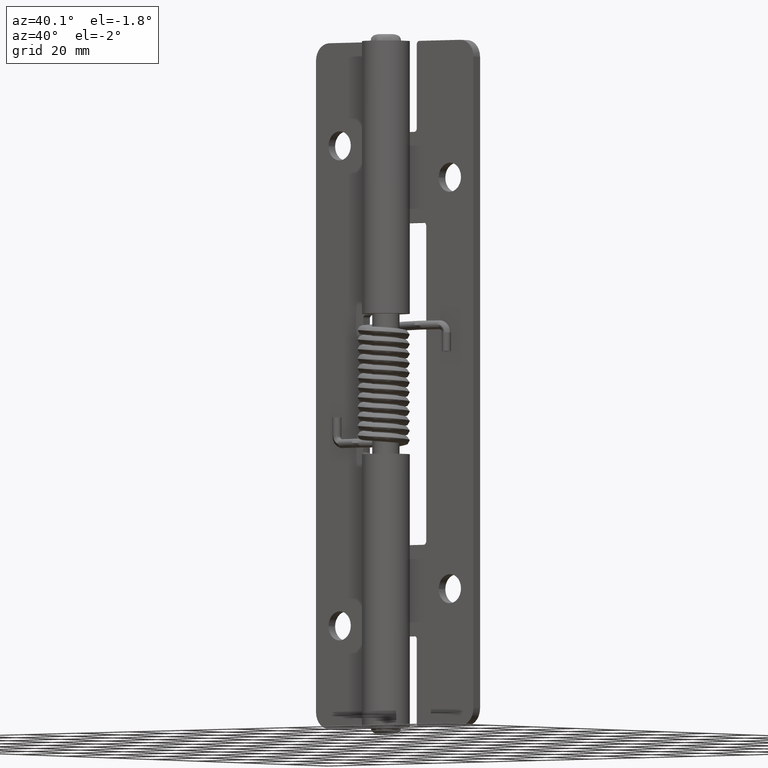
[diagram: clean part render]
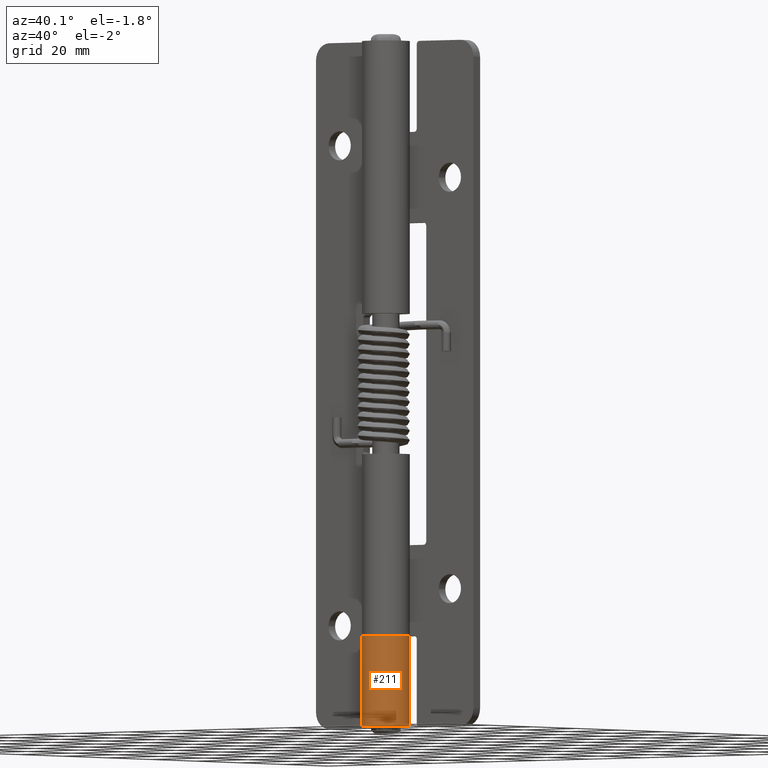
[diagram: same view with one face highlighted and labeled with its STEP entity id]
A machine part, auxiliary view. The second image highlights one B-rep face of the part: STEP entity #211.
In plain terms, the highlighted cylindrical surface (edge-blend (fillet) strip) has radius 7 mm, axis along (0, 0, -1).
Its self-contained STEP definition (entity closure, byte-faithful):
#211=ADVANCED_FACE('',(#878),#877,.T.);
#877=CYLINDRICAL_SURFACE('',#3056,7.00000000000E+00);
#878=FACE_OUTER_BOUND('',#3057,.T.);
#3053=CARTESIAN_POINT('',(0.00000000000E+00,1.00000000000E+03,-1.95399252334E-14));
#3054=DIRECTION('',(-0.00000000000E+00,1.00000000000E+00,0.00000000000E+00));
#3055=DIRECTION('',(4.69471562786E-01,0.00000000000E+00,-8.82947592859E-01));
#3056=AXIS2_PLACEMENT_3D('',#3053,#3054,#3055);
#3057=EDGE_LOOP('',(#3689,#3690,#3691,#3692));
#3689=ORIENTED_EDGE('',*,*,#4023,.T.);
#3690=ORIENTED_EDGE('',*,*,#4110,.T.);
#3691=ORIENTED_EDGE('',*,*,#4097,.F.);
#3692=ORIENTED_EDGE('',*,*,#4040,.T.);
#4023=EDGE_CURVE('',#4728,#4860,#4867,.T.);
#4040=EDGE_CURVE('',#4941,#4728,#4983,.T.);
#4097=EDGE_CURVE('',#4941,#5354,#5367,.T.);
#4110=EDGE_CURVE('',#4860,#5354,#5447,.T.);
#4728=VERTEX_POINT('',#6722);
#4860=VERTEX_POINT('',#6803);
#4867=LINE('',#6807,#6808);
#4941=VERTEX_POINT('',#6854);
#4983=CIRCLE('',#6884,7.00000000000E+00);
#5354=VERTEX_POINT('',#7117);
#5367=LINE('',#7124,#7125);
#5447=CIRCLE('',#7172,7.00000000000E+00);
#6722=CARTESIAN_POINT('',(-1.42108547152E-14,2.00000000000E+02,-7.00000000000E+00));
#6803=CARTESIAN_POINT('',(0.00000000000E+00,1.73500000000E+02,-7.00000000000E+00));
#6807=CARTESIAN_POINT('',(-1.42108547152E-14,2.00000000000E+02,-7.00000000000E+00));
#6808=VECTOR('',#6809,2.65000000000E+01);
#6809=DIRECTION('',(0.00000000000E+00,-1.00000000000E+00,0.00000000000E+00));
#6854=CARTESIAN_POINT('',(5.74526069074E+00,2.00000000000E+02,-3.99899732376E+00));
#6881=CARTESIAN_POINT('',(0.00000000000E+00,2.00000000000E+02,-1.95399252334E-14));
#6882=DIRECTION('',(0.00000000000E+00,-1.00000000000E+00,0.00000000000E+00));
#6883=DIRECTION('',(-0.00000000000E+00,-0.00000000000E+00,-1.00000000000E+00));
#6884=AXIS2_PLACEMENT_3D('',#6881,#6882,#6883);
#7117=CARTESIAN_POINT('',(5.74526069074E+00,1.73500000000E+02,-3.99899732376E+00));
#7124=CARTESIAN_POINT('',(5.74526069074E+00,2.00000000000E+02,-3.99899732376E+00));
#7125=VECTOR('',#7126,2.65000000000E+01);
#7126=DIRECTION('',(0.00000000000E+00,-1.00000000000E+00,0.00000000000E+00));
#7169=CARTESIAN_POINT('',(0.00000000000E+00,1.73500000000E+02,-1.95399252334E-14));
#7170=DIRECTION('',(-0.00000000000E+00,1.00000000000E+00,0.00000000000E+00));
#7171=DIRECTION('',(8.20751527249E-01,0.00000000000E+00,-5.71285331966E-01));
#7172=AXIS2_PLACEMENT_3D('',#7169,#7170,#7171);